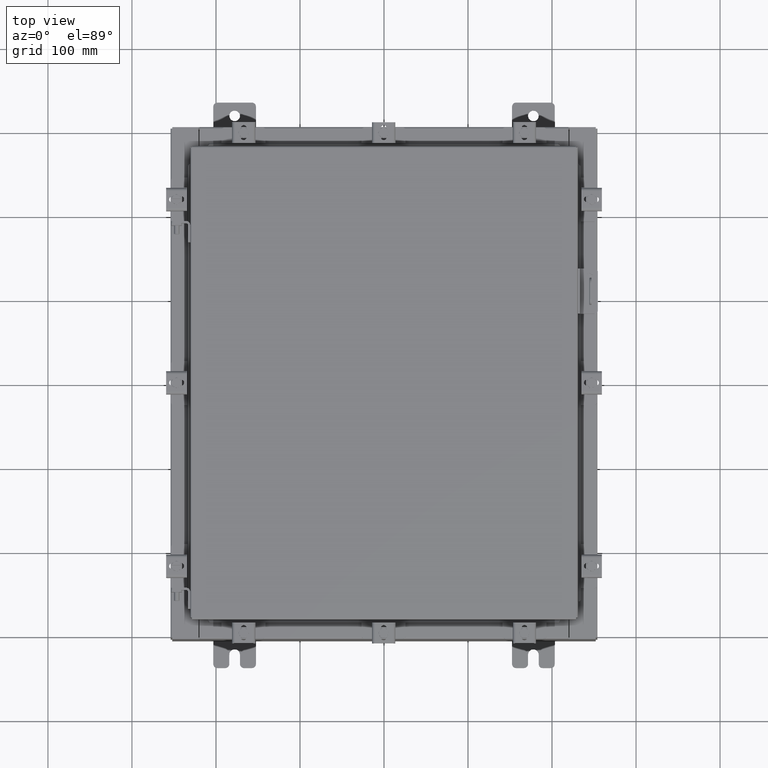
[diagram: clean part render]
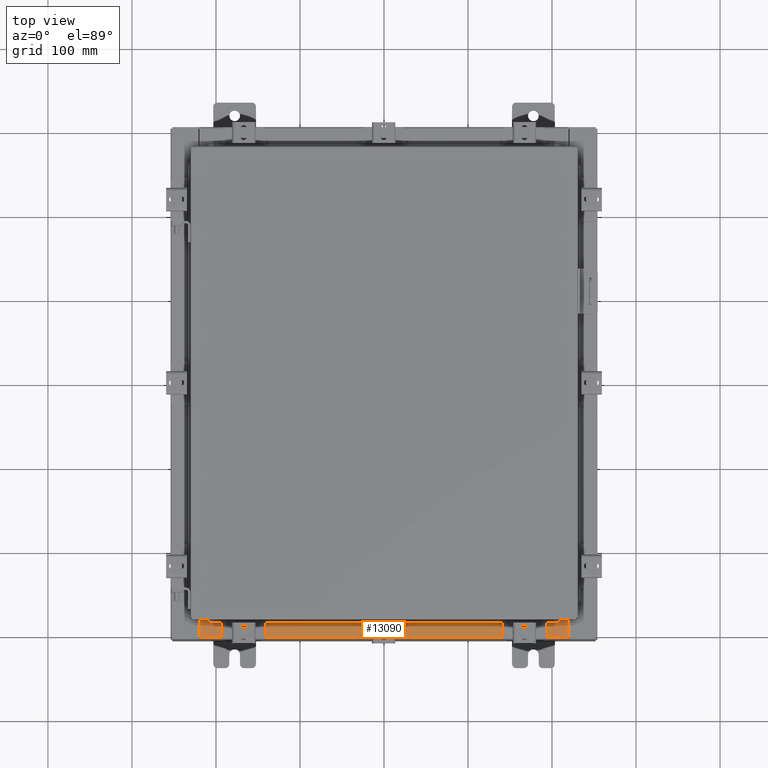
[diagram: same view with one face highlighted and labeled with its STEP entity id]
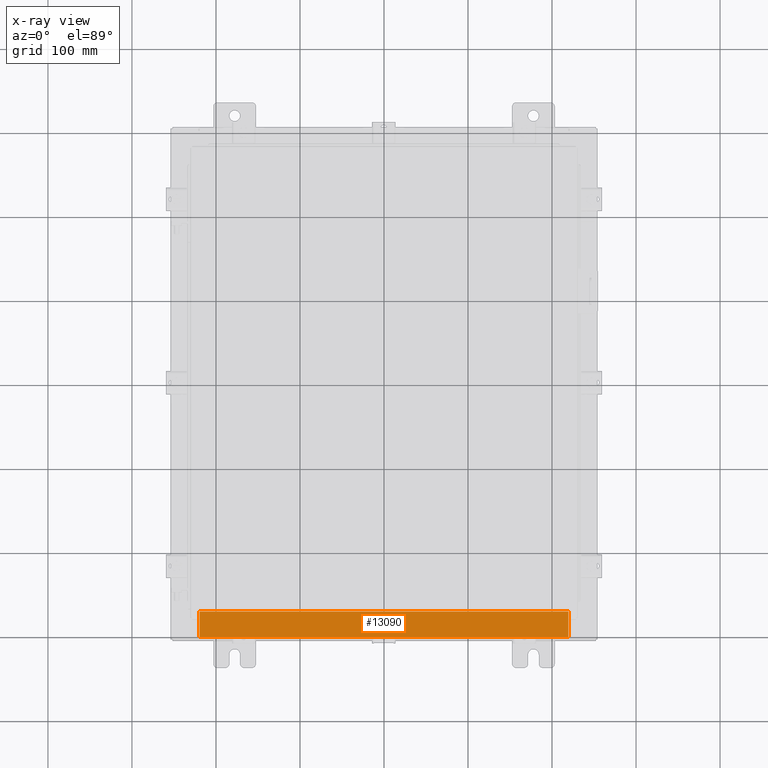
[diagram: x-ray of the same camera — body ghosted, the highlighted face saturated]
A machine part, top view. The second image highlights one B-rep face of the part: STEP entity #13090.
The next image is the same camera in x-ray: the body ghosted, the highlighted face saturated — about 0% of this face is hidden behind the body in this view.
In plain terms, the highlighted planar face has unit normal (-0, -0, 1).
Its self-contained STEP definition (entity closure, byte-faithful):
#286 = VECTOR ( 'NONE', #1814, 39.37007874015748100 ) ;
#449 = LINE ( 'NONE', #12629, #999 ) ;
#999 = VECTOR ( 'NONE', #12676, 39.37007874015748100 ) ;
#1019 = VECTOR ( 'NONE', #5371, 39.37007874015748100 ) ;
#1461 = CARTESIAN_POINT ( 'NONE',  ( 0.0000000000000000000, 1.069354855923099900E-014, 3.000000000000000900 ) ) ;
#1812 = ORIENTED_EDGE ( 'NONE', *, *, #3916, .F. ) ;
#1814 = DIRECTION ( 'NONE',  ( -1.000000000000000000, 3.162886113166609200E-017, -1.128005754888089100E-031 ) ) ;
#1996 = LINE ( 'NONE', #5763, #15331 ) ;
#3261 = DIRECTION ( 'NONE',  ( 0.0000000000000000000, -1.000000000000000000, 3.566381192773190000E-015 ) ) ;
#3731 = ORIENTED_EDGE ( 'NONE', *, *, #7159, .F. ) ;
#3916 = EDGE_CURVE ( 'NONE', #11206, #19338, #449, .T. ) ;
#5033 = LINE ( 'NONE', #13975, #286 ) ;
#5371 = DIRECTION ( 'NONE',  ( -1.000000000000000000, 0.0000000000000000000, 0.0000000000000000000 ) ) ;
#5763 = CARTESIAN_POINT ( 'NONE',  ( -8.637200000000000000, -0.07469999999999973900, 3.000000000000000900 ) ) ;
#6620 = ORIENTED_EDGE ( 'NONE', *, *, #20328, .T. ) ;
#7159 = EDGE_CURVE ( 'NONE', #12303, #11908, #1996, .T. ) ;
#7515 = DIRECTION ( 'NONE',  ( -0.0000000000000000000, 1.000000000000000000, -3.566381192773190000E-015 ) ) ;
#10369 = LINE ( 'NONE', #15611, #1019 ) ;
#10724 = CARTESIAN_POINT ( 'NONE',  ( 8.637200000000000000, -0.08769999999999965300, 3.000000000000000900 ) ) ;
#10839 = CARTESIAN_POINT ( 'NONE',  ( -8.637200000000000000, -0.08770000000000000000, 3.000000000000000900 ) ) ;
#11206 = VERTEX_POINT ( 'NONE', #10724 ) ;
#11908 = VERTEX_POINT ( 'NONE', #10839 ) ;
#12234 = EDGE_LOOP ( 'NONE', ( #3731, #19937, #1812, #6620 ) ) ;
#12303 = VERTEX_POINT ( 'NONE', #17017 ) ;
#12629 = CARTESIAN_POINT ( 'NONE',  ( 8.637200000000000000, -1.300299999999999800, 3.000000000000005300 ) ) ;
#12676 = DIRECTION ( 'NONE',  ( -0.0000000000000000000, -1.000000000000000000, 3.566381192773190000E-015 ) ) ;
#12790 = AXIS2_PLACEMENT_3D ( 'NONE', #1461, #13639, #3261 ) ;
#13042 = CARTESIAN_POINT ( 'NONE',  ( 8.637200000000000000, -1.287299999999999900, 3.000000000000005300 ) ) ;
#13090 = ADVANCED_FACE ( 'NONE', ( #14697 ), #20580, .T. ) ;
#13639 = DIRECTION ( 'NONE',  ( 0.0000000000000000000, 3.566381192773190000E-015, 1.000000000000000000 ) ) ;
#13975 = CARTESIAN_POINT ( 'NONE',  ( -2.773851121247453900E-018, -0.08770000000000000000, 3.000000000000001300 ) ) ;
#14478 = EDGE_CURVE ( 'NONE', #19338, #12303, #10369, .T. ) ;
#14697 = FACE_OUTER_BOUND ( 'NONE', #12234, .T. ) ;
#15331 = VECTOR ( 'NONE', #7515, 39.37007874015748100 ) ;
#15611 = CARTESIAN_POINT ( 'NONE',  ( 8.637200000000000000, -1.287299999999999900, 3.000000000000005300 ) ) ;
#17017 = CARTESIAN_POINT ( 'NONE',  ( -8.637200000000000000, -1.287299999999999200, 3.000000000000005300 ) ) ;
#19338 = VERTEX_POINT ( 'NONE', #13042 ) ;
#19937 = ORIENTED_EDGE ( 'NONE', *, *, #14478, .F. ) ;
#20328 = EDGE_CURVE ( 'NONE', #11206, #11908, #5033, .T. ) ;
#20580 = PLANE ( 'NONE',  #12790 ) ;